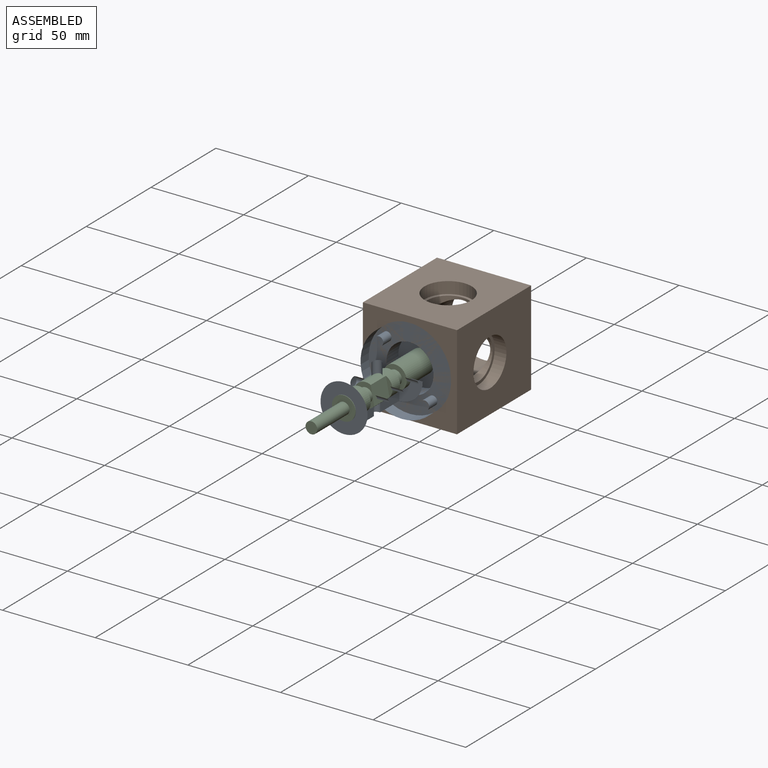
[diagram: assembled view]
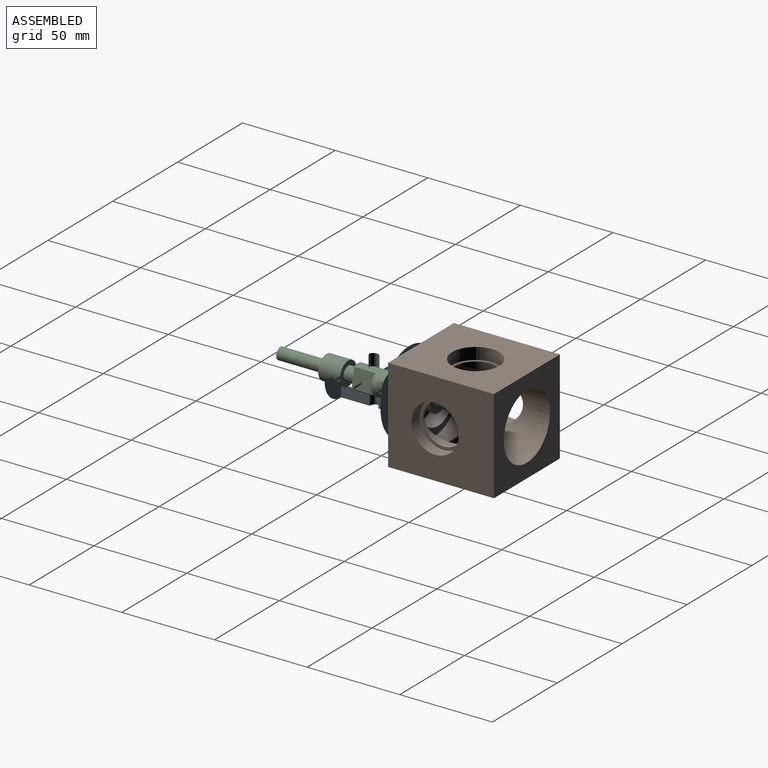
[diagram: assembled view, second angle]
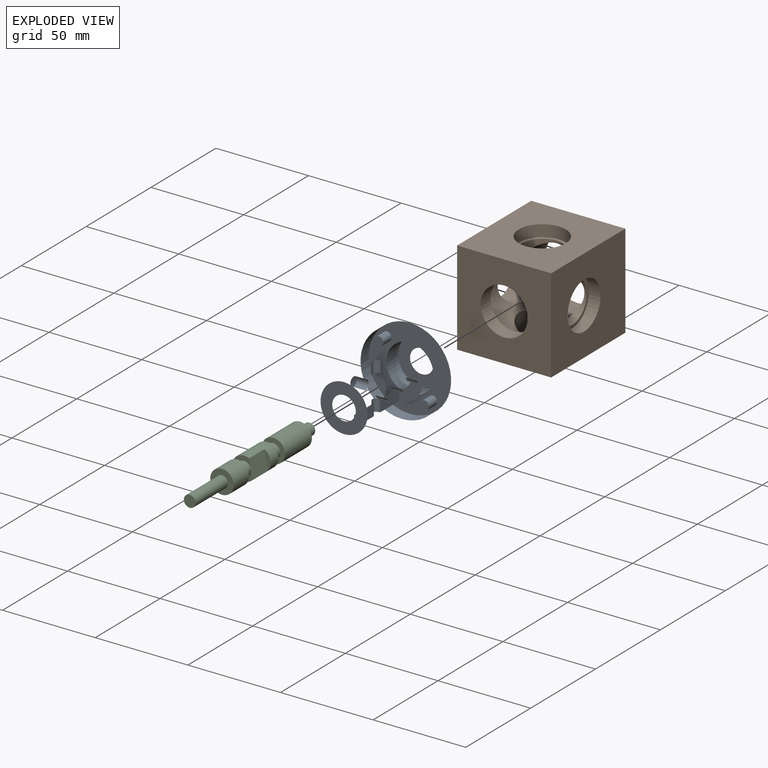
[diagram: exploded view]
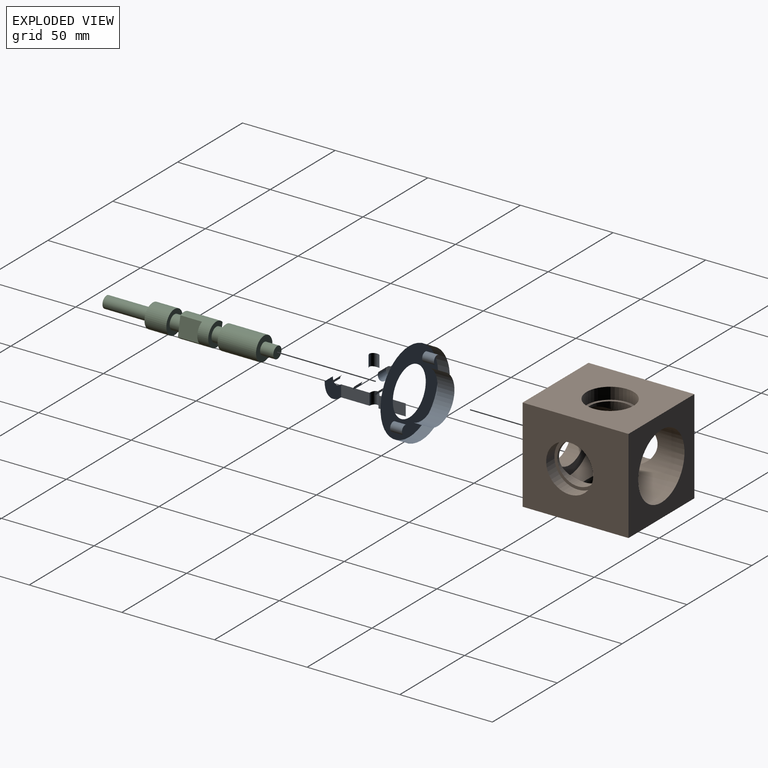
[diagram: exploded view, second angle]
ASSEMBLY  parts=3 mates=2
PART A: 28 faces, bbox 110.7x95.3x95.3 mm
  f0: cylinder r=2.41mm len=6.83mm, axis (0,-1,0), area 49.1mm2, adj f1,f2,f3,f4
  f1: cylinder r=6.35mm len=42.51mm, axis (-1,0,0), area 834mm2, adj f0,f2,f4,f5,f6,f7,f8,f9
  f2: plane 6.6x6.35mm, normal (0,0,1), area 41.9mm2, adj f0,f1,f3,f10
  f3: cylinder r=12.7mm len=42.51mm, axis (-1,0,0), area 795.9mm2, adj f0,f2,f4,f5,f6,f7,f8,f9
  f4: plane 6.6x6.35mm, normal (0,0,1), area 41.9mm2, adj f0,f1,f3,f11
  f5: cylinder r=2.41mm len=6.83mm, axis (0,0,1), area 49.1mm2, adj f1,f3,f6,f14
  f6: plane 66.14x57.15mm, normal (0,-1,0), area 97.4mm2, adj f1,f3,f5,f8
  f7: plane 25.4x25.4mm, normal (1,0,0), area 380mm2, adj f1,f3
  f8: plane 12.7x12.7mm, normal (-1,0,0), area 95mm2, adj f1,f3,f6,f9
  f9: plane 6.35x3.91mm, normal (0,0,1), area 24.8mm2, adj f1,f3,f8,f10
  f10: cylinder r=2.41mm len=6.83mm, axis (0,-1,0), area 49.1mm2, adj f1,f2,f3,f9
  f11: cylinder r=2.41mm len=6.83mm, axis (0,-1,0), area 49.1mm2, adj f1,f3,f4,f12
  f12: plane 6.35x3.27mm, normal (0,0,1), area 20.8mm2, adj f1,f3,f11,f13
  f13: plane 12.7x12.7mm, normal (1,0,0), area 95mm2, adj f1,f3,f12,f14
  f14: plane 40.1x31.75mm, normal (0,-1,0), area 93.3mm2, adj f1,f3,f5,f13
  f15: cylinder r=2.41mm len=6.83mm, axis (0,0,1), area 98.1mm2, adj f1,f17
  f16: cylinder r=2.41mm len=6.83mm, axis (0,-1,0), area 98.1mm2, adj f1,f18
  f17: cylinder r=12.7mm len=4.83mm, axis (-1,0,0), area 18.4mm2, adj f15
  f18: cylinder r=12.7mm len=4.83mm, axis (-1,0,0), area 18.4mm2, adj f16
  f19: plane 50.8x50.8mm, normal (1,0,0), area 380mm2, adj f20,f21
  f20: cylinder r=12.7mm len=25.4mm, axis (-1,0,0), area 729.7mm2, adj f19,f22
  f21: cylinder r=6.35mm len=12.7mm, axis (-1,0,0), area 0mm2, adj f19
  f22: plane 44.45x44.45mm, normal (1,0,0), area 1008.5mm2, adj f20,f23,f24,f25
  f23: cylinder r=2.41mm len=6.35mm, axis (-1,0,0), area 96.3mm2, adj f22,f26
  f24: cylinder r=2.41mm len=6.35mm, axis (-1,0,0), area 96.3mm2, adj f22,f26
  f25: cylinder r=22.23mm len=44.45mm, axis (-1,0,0), area 886.7mm2, adj f22,f26
  f26: plane 95.25x95.25mm, normal (-1,0,0), area 1008.5mm2, adj f23,f24,f25,f27
  f27: cylinder r=12.7mm len=25.4mm, axis (-1,0,0), area 0mm2, adj f26
PART B: 21 faces, bbox 50.8x57.2x50.8 mm
  f0: cylinder r=11.11mm len=22.23mm, axis (0,0,1), area 220.7mm2, adj f1,f17
  f1: cylinder r=17.78mm len=49.53mm, axis (0,1,0), area 3892.4mm2, adj f0,f2,f9,f10,f13,f16
  f2: cylinder r=11.11mm len=22.23mm, axis (1,0,0), area 220.9mm2, adj f1,f11
  f3: plane 57.15x50.8mm, normal (-1,0,0), area 2396.5mm2, adj f4,f6,f8,f9,f14
  f4: plane 57.15x50.8mm, normal (0,0,-1), area 2396.5mm2, adj f3,f5,f8,f9,f20
  f5: plane 57.15x50.8mm, normal (1,0,0), area 2396.5mm2, adj f4,f6,f8,f9,f12
  f6: plane 57.15x50.8mm, normal (0,0,1), area 2396.5mm2, adj f3,f5,f8,f9,f18
  f7: cylinder r=12.7mm len=25.4mm, axis (0,1,0), area 608mm2, adj f8,f10
  f8: plane 50.8x50.8mm, normal (0,-1,0), area 2073.9mm2, adj f3,f4,f5,f6,f7
  f9: plane 50.8x50.8mm, normal (0,1,0), area 1587.5mm2, adj f1,f3,f4,f5,f6
  f10: plane 35.56x35.56mm, normal (0,1,0), area 486.4mm2, adj f1,f7
  f11: plane 25.4x25.4mm, normal (1,0,0), area 118.8mm2, adj f2,f12
  f12: cylinder r=12.7mm len=25.4mm, axis (1,0,0), area 506.7mm2, adj f5,f11
  f13: cylinder r=11.11mm len=22.23mm, axis (-1,0,0), area 220.5mm2, adj f1,f15
  f14: cylinder r=12.7mm len=25.4mm, axis (-1,0,0), area 506.7mm2, adj f3,f15
  f15: plane 25.4x25.4mm, normal (-1,0,0), area 118.8mm2, adj f13,f14
  f16: cylinder r=11.11mm len=22.23mm, axis (0,0,1), area 220.7mm2, adj f1,f19
  f17: plane 25.4x25.4mm, normal (0,0,1), area 118.8mm2, adj f0,f18
  f18: cylinder r=12.7mm len=25.4mm, axis (0,0,1), area 506.7mm2, adj f6,f17
  f19: plane 25.4x25.4mm, normal (0,0,-1), area 118.8mm2, adj f16,f20
  f20: cylinder r=12.7mm len=25.4mm, axis (0,0,-1), area 506.7mm2, adj f4,f19
PART C: 21 faces, bbox 12.7x92.2x12.7 mm
  f0: cylinder r=6.35mm len=20.7mm, axis (0,-1,0), area 823.1mm2, adj f3,f8,f14,f15
  f1: cylinder r=6.35mm len=17.53mm, axis (0,-1,0), area 430.4mm2, adj f2,f7,f12,f13,f16,f17
  f2: plane 12.7x10.16mm, normal (0,1,0), area 63mm2, adj f1,f9,f13
  f3: plane 12.7x12.7mm, normal (0,-1,0), area 95mm2, adj f0,f4
  f4: cylinder r=3.17mm len=7.11mm, axis (0,1,0), area 141.9mm2, adj f3,f5
  f5: plane 6.35x6.35mm, normal (0,-1,0), area 31.7mm2, adj f4
  f6: cylinder r=3.81mm len=7.62mm, axis (0,-1,0), area 121.6mm2, adj f7,f8
  f7: plane 12.7x10.16mm, normal (0,-1,0), area 63mm2, adj f1,f6,f16
  f8: plane 12.7x10.16mm, normal (0,1,0), area 63mm2, adj f0,f6,f14
  f9: cylinder r=3.81mm len=7.62mm, axis (0,1,0), area 121.6mm2, adj f2,f10
  f10: plane 12.7x12.7mm, normal (0,-1,0), area 81.1mm2, adj f9,f11
  f11: cylinder r=6.35mm len=12.7mm, axis (0,-1,0), area 471.2mm2, adj f10,f19
  f12: plane 10.16x2.54mm, normal (0,1,0), area 18mm2, adj f1,f13
  f13: plane 11.64x10.16mm, normal (1,0,0), area 118.3mm2, adj f1,f2,f12
  f14: plane 10.16x0.24mm, normal (-1,0,0), area 2.5mm2, adj f0,f8,f15
  f15: plane 10.16x2.54mm, normal (0,1,0), area 18mm2, adj f0,f14
  f16: plane 11.19x10.16mm, normal (-1,0,0), area 113.7mm2, adj f1,f7,f17
  f17: plane 10.16x2.54mm, normal (0,-1,0), area 18mm2, adj f1,f16
  f18: cylinder r=3.17mm len=24.89mm, axis (0,-1,0), area 496.6mm2, adj f19,f20
  f19: plane 12.7x12.7mm, normal (0,1,0), area 95mm2, adj f11,f18
  f20: plane 6.35x6.35mm, normal (0,1,0), area 31.7mm2, adj f18
PLACE A rot(axis=(0.71,-0.71,0),180deg) t=(-13.56,-28.89,-2.55)mm
PLACE B t=(-13.56,19.12,-2.55)mm fixed
PLACE C rot(axis=(1,0,0.09),180deg) t=(-13.56,-28.89,-2.55)mm
MATE revolute C.f0 <-> A.f1  axis (0,1,0) through (-13.56,-28.89,-2.55)mm
MATE fastened A.f1 <-> B.f7  axis (0,1,0) through (-13.56,-38.03,-2.55)mm
